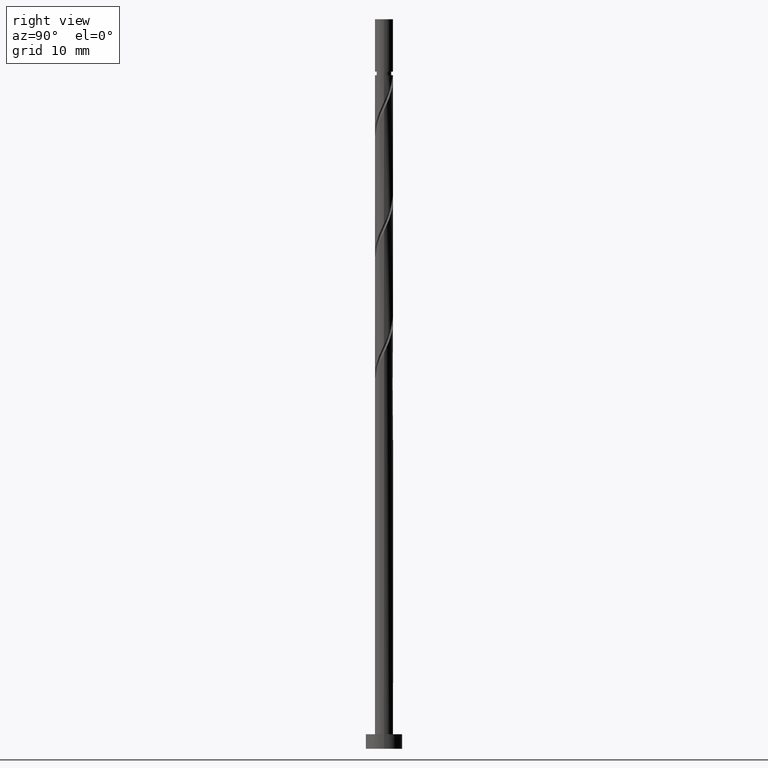
[diagram: clean part render]
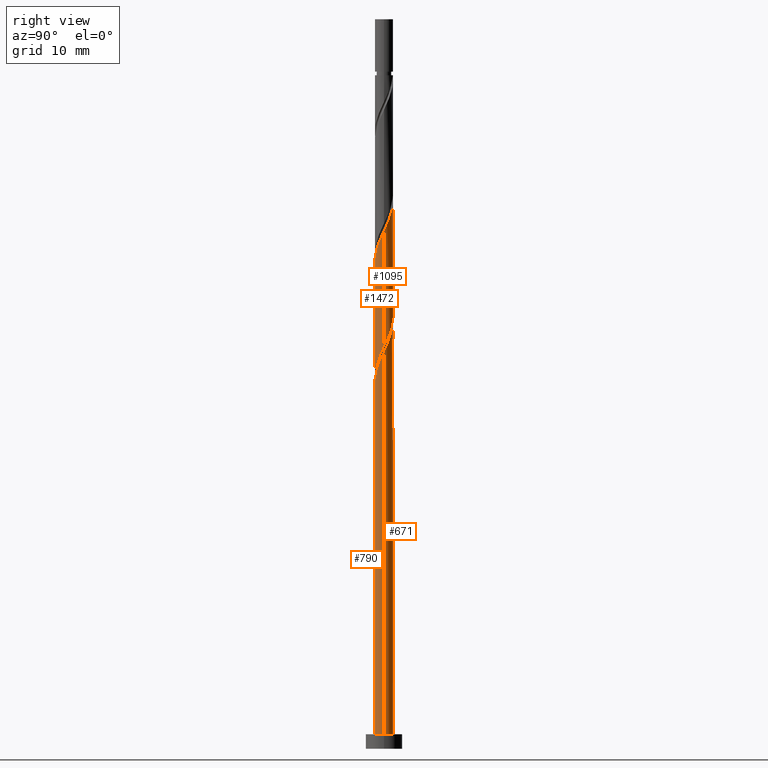
[diagram: same view with one multi-face feature highlighted, each face labeled with its STEP entity id]
A machine part, right view. The highlighted faces form ONE feature: a constant-radius fillet chain: 4 tangent blend faces with common blend radius 1.25 mm. The faces share edges in the B-rep.
Their STEP definitions:
[1] entity #1095 (Cylinder):
#2 = EDGE_CURVE ( 'NONE', #680, #813, #325, .T. ) ;
#3 = CARTESIAN_POINT ( 'NONE',  ( -1.185254549274266767, 0.3970789007548250482, 78.42208152126205789 ) ) ;
#50 = ORIENTED_EDGE ( 'NONE', *, *, #355, .T. ) ;
#63 = DIRECTION ( 'NONE',  ( -0.000000000000000000, -0.000000000000000000, -1.000000000000000000 ) ) ;
#101 = CARTESIAN_POINT ( 'NONE',  ( 1.082492517692347223, 0.6627895258576387283, 72.40356300274353885 ) ) ;
#107 = CARTESIAN_POINT ( 'NONE',  ( 0.9365076899976113589, 0.8279210992451773166, 72.86652596570650076 ) ) ;
#113 = CARTESIAN_POINT ( 'NONE',  ( -1.243897599560038314, 0.2525841805325140244, 63.14430374348425801 ) ) ;
#118 = CARTESIAN_POINT ( 'NONE',  ( 0.9779659711581908388, 0.7785130437292726580, 57.12578522496573896 ) ) ;
#124 = CARTESIAN_POINT ( 'NONE',  ( 0.4647474106445247388, 1.181139217343034176, 58.51467411385463180 ) ) ;
#126 = CARTESIAN_POINT ( 'NONE',  ( -1.250000000000001776, -5.751502120554076071E-16, 79.28011552182887556 ) ) ;
#191 = VERTEX_POINT ( 'NONE', #1277 ) ;
#210 = CARTESIAN_POINT ( 'NONE',  ( -0.9779659711581923931, 0.7785130437292746564, 77.49615559533613407 ) ) ;
#216 = CARTESIAN_POINT ( 'NONE',  ( -0.4647474106445250719, 1.181139217343036174, 76.10726670644721992 ) ) ;
#218 = CARTESIAN_POINT ( 'NONE',  ( 1.250000000000001776, -1.027053950098942163E-15, 70.94678218849549012 ) ) ;
#274 = ORIENTED_EDGE ( 'NONE', *, *, #1337, .F. ) ;
#325 = LINE ( 'NONE', #793, #413 ) ;
#332 = CARTESIAN_POINT ( 'NONE',  ( 0.03274630790878532011, 1.268860782656966668, 59.44060003978056272 ) ) ;
#339 = CARTESIAN_POINT ( 'NONE',  ( 0.6527202636798884461, 1.066047024001125720, 58.05171115089165568 ) ) ;
#355 = EDGE_CURVE ( 'NONE', #868, #191, #1092, .T. ) ;
#382 = DIRECTION ( 'NONE',  ( -0.000000000000000000, -0.000000000000000000, -1.000000000000000000 ) ) ;
#397 = CARTESIAN_POINT ( 'NONE',  ( 0.000000000000000000, 0.000000000000000000, 100.0000000000000000 ) ) ;
#413 = VECTOR ( 'NONE', #1023, 1000.000000000000000 ) ;
#439 = CARTESIAN_POINT ( 'NONE',  ( -1.250000000000000222, 2.774913036085524086E-15, 63.67515863180634028 ) ) ;
#458 = CARTESIAN_POINT ( 'NONE',  ( -1.082492517692345224, 0.6627895258576387283, 62.21837781755835550 ) ) ;
#464 = CARTESIAN_POINT ( 'NONE',  ( 1.250000000000000444, 1.923391942912577386E-16, 55.34182529847303300 ) ) ;
#508 = ORIENTED_EDGE ( 'NONE', *, *, #2, .F. ) ;
#534 = CYLINDRICAL_SURFACE ( 'NONE', #648, 1.250000000000000000 ) ;
#564 = CARTESIAN_POINT ( 'NONE',  ( -0.2487468592766548803, 1.225000000000002309, 75.64430374348430064 ) ) ;
#569 = CARTESIAN_POINT ( 'NONE',  ( -1.250000000000001998, -5.751502120554076071E-16, 79.28011552182887556 ) ) ;
#584 = CARTESIAN_POINT ( 'NONE',  ( 1.115238825601130968, 0.6060712567993277178, 56.66282226200277705 ) ) ;
#590 = CARTESIAN_POINT ( 'NONE',  ( -0.4032044828447868823, 1.203539011191732566, 60.36652596570649365 ) ) ;
#622 = CARTESIAN_POINT ( 'NONE',  ( 1.250000000000000000, 1.530808498934191571E-16, 100.0000000000000000 ) ) ;
#648 = AXIS2_PLACEMENT_3D ( 'NONE', #397, #63, #1244 ) ;
#678 = CARTESIAN_POINT ( 'NONE',  ( -1.250000000000003553, 0.2038179647755666291, 78.85019600946324658 ) ) ;
#680 = VERTEX_POINT ( 'NONE', #126 ) ;
#701 = CARTESIAN_POINT ( 'NONE',  ( -0.8406931167152518203, 0.9509548306592201516, 77.03319263237314374 ) ) ;
#791 = CARTESIAN_POINT ( 'NONE',  ( -1.250000000000000000, 0.01612709291502599507, 63.64114125787398279 ) ) ;
#793 = CARTESIAN_POINT ( 'NONE',  ( -1.250000000000000000, 0.000000000000000000, 100.0000000000000000 ) ) ;
#798 = CARTESIAN_POINT ( 'NONE',  ( 0.4032044828447884366, 1.203539011191733898, 74.25541485459534385 ) ) ;
#803 = CARTESIAN_POINT ( 'NONE',  ( 0.5968636725738323268, 1.098295841912225068, 73.79245189163239615 ) ) ;
#810 = CARTESIAN_POINT ( 'NONE',  ( 1.185254549274264768, 0.3970789007548241600, 56.19985929903981514 ) ) ;
#813 = VERTEX_POINT ( 'NONE', #819 ) ;
#819 = CARTESIAN_POINT ( 'NONE',  ( -1.250000000000000000, 2.774913036085523691E-15, 63.67515863180634028 ) ) ;
#827 = EDGE_LOOP ( 'NONE', ( #274, #50, #1059, #508 ) ) ;
#868 = VERTEX_POINT ( 'NONE', #218 ) ;
#903 = CARTESIAN_POINT ( 'NONE',  ( -1.163195058626191214, 0.4576868531950761820, 62.68134078052128899 ) ) ;
#909 = CARTESIAN_POINT ( 'NONE',  ( 1.250000000000000000, 0.2038179647755701540, 55.77174481083864777 ) ) ;
#917 = CARTESIAN_POINT ( 'NONE',  ( 0.7905228623028762724, 0.9930526726327152387, 73.32948892866943424 ) ) ;
#922 = CARTESIAN_POINT ( 'NONE',  ( -0.9365076899976096936, 0.8279210992451759843, 61.75541485459537228 ) ) ;
#1022 = CARTESIAN_POINT ( 'NONE',  ( 1.243897599560039868, 0.2525841805325139688, 71.47763707681755818 ) ) ;
#1023 = DIRECTION ( 'NONE',  ( -0.000000000000000000, -0.000000000000000000, -1.000000000000000000 ) ) ;
#1033 = CARTESIAN_POINT ( 'NONE',  ( 0.2487468592766551856, 1.224999999999999867, 58.97763707681758660 ) ) ;
#1044 =( BOUNDED_CURVE ( )  B_SPLINE_CURVE ( 2, ( #1249, #1132, #1386, #1022, #1374, #101, #107, #917, #803, #798, #1477, #1256, #564, #216, #1263, #701, #210, #1367, #3, #678, #569 ),
 .UNSPECIFIED., .F., .T. ) 
 B_SPLINE_CURVE_WITH_KNOTS ( ( 3, 2, 2, 2, 2, 2, 2, 2, 2, 2, 3 ),
 ( 0.4295248053855287296, 0.4305555555555555802, 0.4444444444444444198, 0.4583333333333333703, 0.4722222222222222099, 0.4861111111111111605, 0.5000000000000000000, 0.5138888888888888395, 0.5277777777777777901, 0.5416666666666667407, 0.5545248053855293957 ),
 .UNSPECIFIED. ) 
 CURVE ( )  GEOMETRIC_REPRESENTATION_ITEM ( )  RATIONAL_B_SPLINE_CURVE ( ( 0.9071930855141252525, 0.9080659294509730861, 0.9090909090909135015, 0.8952797754656481866, 0.9090909090909135015, 0.8952797754656481866, 0.9090909090909135015, 0.8952797754656481866, 0.9090909090909135015, 0.8952797754656481866, 0.9090909090909135015, 0.8952797754656481866, 0.9090909090909135015, 0.8952797754656481866, 0.9090909090909135015, 0.8952797754656481866, 0.9090909090909135015, 0.8952797754656481866, 0.9090909090909135015, 0.8963047551055879358, 0.9071930855141262517 ) ) 
 REPRESENTATION_ITEM ( '' )  );
#1059 = ORIENTED_EDGE ( 'NONE', *, *, #1274, .F. ) ;
#1092 = LINE ( 'NONE', #622, #1172 ) ;
#1095 = ADVANCED_FACE ( 'NONE', ( #1329 ), #534, .T. ) ;
#1132 = CARTESIAN_POINT ( 'NONE',  ( 1.250000000000001776, 0.01612709291502053416, 70.98079956242783339 ) ) ;
#1151 = CARTESIAN_POINT ( 'NONE',  ( -0.7905228623028748292, 0.9930526726327140175, 61.29245189163241747 ) ) ;
#1172 = VECTOR ( 'NONE', #382, 1000.000000000000000 ) ;
#1244 = DIRECTION ( 'NONE',  ( -1.000000000000000000, 0.000000000000000000, 0.000000000000000000 ) ) ;
#1249 = CARTESIAN_POINT ( 'NONE',  ( 1.250000000000001998, -1.027053950098942163E-15, 70.94678218849549012 ) ) ;
#1253 =( BOUNDED_CURVE ( )  B_SPLINE_CURVE ( 2, ( #439, #791, #1269, #113, #903, #458, #922, #1151, #1380, #590, #1276, #332, #1033, #124, #339, #1469, #118, #584, #810, #909, #464 ),
 .UNSPECIFIED., .F., .T. ) 
 B_SPLINE_CURVE_WITH_KNOTS ( ( 3, 2, 2, 2, 2, 2, 2, 2, 2, 2, 3 ),
 ( 0.6795248053855290626, 0.6805555555555555802, 0.6944444444444444198, 0.7083333333333333703, 0.7222222222222222099, 0.7361111111111111605, 0.7500000000000000000, 0.7638888888888888395, 0.7777777777777777901, 0.7916666666666666297, 0.8045248053855290626 ),
 .UNSPECIFIED. ) 
 CURVE ( )  GEOMETRIC_REPRESENTATION_ITEM ( )  RATIONAL_B_SPLINE_CURVE ( ( 0.9071930855141197014, 0.9080659294509674240, 0.9090909090909075063, 0.8952797754656419693, 0.9090909090909075063, 0.8952797754656419693, 0.9090909090909075063, 0.8952797754656419693, 0.9090909090909075063, 0.8952797754656419693, 0.9090909090909075063, 0.8952797754656419693, 0.9090909090909075063, 0.8952797754656419693, 0.9090909090909075063, 0.8952797754656419693, 0.9090909090909075063, 0.8952797754656419693, 0.9090909090909075063, 0.8963047551055820517, 0.9071930855141197014 ) ) 
 REPRESENTATION_ITEM ( '' )  );
#1256 = CARTESIAN_POINT ( 'NONE',  ( -0.03274630790878510500, 1.268860782656968000, 75.18134078052126767 ) ) ;
#1263 = CARTESIAN_POINT ( 'NONE',  ( -0.6527202636798885571, 1.066047024001128607, 76.57022966941018183 ) ) ;
#1269 = CARTESIAN_POINT ( 'NONE',  ( -1.249583936253718219, 0.03224881791109680124, 63.60726670644721281 ) ) ;
#1274 = EDGE_CURVE ( 'NONE', #813, #191, #1253, .T. ) ;
#1276 = CARTESIAN_POINT ( 'NONE',  ( -0.1852290874680007915, 1.236199896924349062, 59.90356300274352463 ) ) ;
#1277 = CARTESIAN_POINT ( 'NONE',  ( 1.250000000000000444, 1.923391942912577386E-16, 55.34182529847303300 ) ) ;
#1329 = FACE_OUTER_BOUND ( 'NONE', #827, .T. ) ;
#1337 = EDGE_CURVE ( 'NONE', #868, #680, #1044, .T. ) ;
#1367 = CARTESIAN_POINT ( 'NONE',  ( -1.115238825601132300, 0.6060712567993288280, 77.95911855829909598 ) ) ;
#1374 = CARTESIAN_POINT ( 'NONE',  ( 1.163195058626193878, 0.4576868531950764596, 71.94060003978057694 ) ) ;
#1380 = CARTESIAN_POINT ( 'NONE',  ( -0.5968636725738306614, 1.098295841912223070, 60.82948892866944846 ) ) ;
#1386 = CARTESIAN_POINT ( 'NONE',  ( 1.249583936253720218, 0.03224881791109665552, 71.01467411385462469 ) ) ;
#1469 = CARTESIAN_POINT ( 'NONE',  ( 0.8406931167152514872, 0.9509548306592183753, 57.58874818792870798 ) ) ;
#1477 = CARTESIAN_POINT ( 'NONE',  ( 0.1852290874680022348, 1.236199896924351060, 74.71837781755837682 ) ) ;
[2] entity #1472 (Cylinder):
#19 = EDGE_CURVE ( 'NONE', #191, #127, #1474, .T. ) ;
#25 = CARTESIAN_POINT ( 'NONE',  ( 0.8406931167152515982, -0.9509548306592204847, 68.69985929903982935 ) ) ;
#97 = CARTESIAN_POINT ( 'NONE',  ( 1.082492517692345002, -0.6627895258576392834, 53.88504448422500559 ) ) ;
#108 = CARTESIAN_POINT ( 'NONE',  ( -1.250000000000000222, -7.021314277040088684E-16, 47.00849196513969730 ) ) ;
#114 = CARTESIAN_POINT ( 'NONE',  ( -0.4647474106445250719, -1.181139217343034176, 50.18134078052131741 ) ) ;
#121 = ORIENTED_EDGE ( 'NONE', *, *, #355, .F. ) ;
#127 = VERTEX_POINT ( 'NONE', #108 ) ;
#133 = VECTOR ( 'NONE', #1395, 1000.000000000000000 ) ;
#135 = CARTESIAN_POINT ( 'NONE',  ( -1.250000000000002220, -2.451857884508928913E-15, 62.61344885516218994 ) ) ;
#144 = CARTESIAN_POINT ( 'NONE',  ( -1.250000000000002220, -2.451857884508928913E-15, 62.61344885516218994 ) ) ;
#145 = ORIENTED_EDGE ( 'NONE', *, *, #1035, .F. ) ;
#191 = VERTEX_POINT ( 'NONE', #1277 ) ;
#198 = CARTESIAN_POINT ( 'NONE',  ( -1.250000000000000222, -7.021314277040088684E-16, 47.00849196513969730 ) ) ;
#217 = ORIENTED_EDGE ( 'NONE', *, *, #317, .T. ) ;
#218 = CARTESIAN_POINT ( 'NONE',  ( 1.250000000000001776, -1.027053950098942163E-15, 70.94678218849549012 ) ) ;
#225 =( BOUNDED_CURVE ( )  B_SPLINE_CURVE ( 2, ( #135, #963, #859, #1417, #257, #826, #615, #716, #507, #969, #1081, #1176, #600, #1058, #1290, #25, #481, #1066, #1298, #851, #1424 ),
 .UNSPECIFIED., .F., .T. ) 
 B_SPLINE_CURVE_WITH_KNOTS ( ( 3, 2, 2, 2, 2, 2, 2, 2, 2, 2, 3 ),
 ( 0.3045248053855292847, 0.3055555555555555802, 0.3194444444444444198, 0.3333333333333333703, 0.3472222222222222099, 0.3611111111111111605, 0.3750000000000000000, 0.3888888888888888395, 0.4027777777777777901, 0.4166666666666666297, 0.4295248053855287296 ),
 .UNSPECIFIED. ) 
 CURVE ( )  GEOMETRIC_REPRESENTATION_ITEM ( )  RATIONAL_B_SPLINE_CURVE ( ( 0.9071930855141261407, 0.9080659294509736412, 0.9090909090909135015, 0.8952797754656481866, 0.9090909090909135015, 0.8952797754656481866, 0.9090909090909135015, 0.8952797754656481866, 0.9090909090909135015, 0.8952797754656481866, 0.9090909090909135015, 0.8952797754656481866, 0.9090909090909135015, 0.8952797754656481866, 0.9090909090909135015, 0.8952797754656481866, 0.9090909090909135015, 0.8952797754656481866, 0.9090909090909135015, 0.8963047551055886020, 0.9071930855141252525 ) ) 
 REPRESENTATION_ITEM ( '' )  );
#257 = CARTESIAN_POINT ( 'NONE',  ( -1.163195058626193656, -0.4576868531950767371, 63.60726670644724123 ) ) ;
#296 = ORIENTED_EDGE ( 'NONE', *, *, #19, .F. ) ;
#317 = EDGE_CURVE ( 'NONE', #884, #127, #721, .T. ) ;
#321 = CARTESIAN_POINT ( 'NONE',  ( 1.163195058626191214, -0.4576868531950760710, 54.34800744718796750 ) ) ;
#340 = CARTESIAN_POINT ( 'NONE',  ( -1.185254549274264768, -0.3970789007548236604, 47.86652596570648655 ) ) ;
#355 = EDGE_CURVE ( 'NONE', #868, #191, #1092, .T. ) ;
#382 = DIRECTION ( 'NONE',  ( -0.000000000000000000, -0.000000000000000000, -1.000000000000000000 ) ) ;
#440 = CARTESIAN_POINT ( 'NONE',  ( 0.7905228623028744961, -0.9930526726327140175, 52.95911855829908887 ) ) ;
#481 = CARTESIAN_POINT ( 'NONE',  ( 0.9779659711581923931, -0.7785130437292746564, 69.16282226200279126 ) ) ;
#507 = CARTESIAN_POINT ( 'NONE',  ( -0.5968636725738321047, -1.098295841912225068, 65.45911855829909598 ) ) ;
#600 = CARTESIAN_POINT ( 'NONE',  ( 0.2487468592766550191, -1.225000000000002309, 67.31097041015097204 ) ) ;
#615 = CARTESIAN_POINT ( 'NONE',  ( -0.9365076899976116920, -0.8279210992451770945, 64.53319263237317216 ) ) ;
#622 = CARTESIAN_POINT ( 'NONE',  ( 1.250000000000000000, 1.530808498934191571E-16, 100.0000000000000000 ) ) ;
#716 = CARTESIAN_POINT ( 'NONE',  ( -0.7905228623028761614, -0.9930526726327152387, 64.99615559533611986 ) ) ;
#721 = LINE ( 'NONE', #1160, #133 ) ;
#726 = DIRECTION ( 'NONE',  ( -1.000000000000000000, 0.000000000000000000, 0.000000000000000000 ) ) ;
#771 = EDGE_LOOP ( 'NONE', ( #121, #145, #217, #296 ) ) ;
#778 = CARTESIAN_POINT ( 'NONE',  ( -1.249999999999998002, -0.2038179647755760382, 47.43841147750531917 ) ) ;
#786 = CARTESIAN_POINT ( 'NONE',  ( -0.6527202636798878910, -1.066047024001125942, 49.71837781755834129 ) ) ;
#826 = CARTESIAN_POINT ( 'NONE',  ( -1.082492517692347000, -0.6627895258576391724, 64.07022966941018183 ) ) ;
#851 = CARTESIAN_POINT ( 'NONE',  ( 1.250000000000000000, -0.2038179647755773427, 70.51686267612988956 ) ) ;
#854 = FACE_OUTER_BOUND ( 'NONE', #771, .T. ) ;
#859 = CARTESIAN_POINT ( 'NONE',  ( -1.249583936253720218, -0.03224881791109653756, 62.68134078052131741 ) ) ;
#868 = VERTEX_POINT ( 'NONE', #218 ) ;
#884 = VERTEX_POINT ( 'NONE', #144 ) ;
#904 = CARTESIAN_POINT ( 'NONE',  ( 0.4032044828447866602, -1.203539011191733010, 52.03319263237315084 ) ) ;
#918 = CARTESIAN_POINT ( 'NONE',  ( 1.250000000000000222, -0.01612709291502648079, 55.30780792454066841 ) ) ;
#963 = CARTESIAN_POINT ( 'NONE',  ( -1.250000000000001776, -0.01612709291502917655, 62.64746622909454743 ) ) ;
#969 = CARTESIAN_POINT ( 'NONE',  ( -0.4032044828447876039, -1.203539011191734343, 65.92208152126204368 ) ) ;
#1018 = CARTESIAN_POINT ( 'NONE',  ( 1.243897599560038314, -0.2525841805325141909, 54.81097041015094362 ) ) ;
#1035 = EDGE_CURVE ( 'NONE', #884, #868, #225, .T. ) ;
#1058 = CARTESIAN_POINT ( 'NONE',  ( 0.4647474106445247388, -1.181139217343036174, 67.77393337311389132 ) ) ;
#1066 = CARTESIAN_POINT ( 'NONE',  ( 1.115238825601131856, -0.6060712567993289390, 69.62578522496575317 ) ) ;
#1081 = CARTESIAN_POINT ( 'NONE',  ( -0.1852290874680015964, -1.236199896924351282, 66.38504448422500559 ) ) ;
#1092 = LINE ( 'NONE', #622, #1172 ) ;
#1102 = AXIS2_PLACEMENT_3D ( 'NONE', #1419, #1191, #726 ) ;
#1128 = CARTESIAN_POINT ( 'NONE',  ( -0.9779659711581906167, -0.7785130437292729910, 48.79245189163241037 ) ) ;
#1133 = CARTESIAN_POINT ( 'NONE',  ( 0.5968636725738306614, -1.098295841912223070, 52.49615559533610565 ) ) ;
#1138 = CARTESIAN_POINT ( 'NONE',  ( -0.8406931167152508211, -0.9509548306592188194, 49.25541485459537938 ) ) ;
#1144 = CARTESIAN_POINT ( 'NONE',  ( 0.1852290874680007082, -1.236199896924349062, 51.57022966941017472 ) ) ;
#1160 = CARTESIAN_POINT ( 'NONE',  ( -1.250000000000000000, 0.000000000000000000, 100.0000000000000000 ) ) ;
#1172 = VECTOR ( 'NONE', #382, 1000.000000000000000 ) ;
#1176 = CARTESIAN_POINT ( 'NONE',  ( 0.03274630790878472336, -1.268860782656968000, 66.84800744718798171 ) ) ;
#1191 = DIRECTION ( 'NONE',  ( -0.000000000000000000, -0.000000000000000000, -1.000000000000000000 ) ) ;
#1251 = CARTESIAN_POINT ( 'NONE',  ( 1.250000000000000444, 1.923391942912577386E-16, 55.34182529847303300 ) ) ;
#1257 = CARTESIAN_POINT ( 'NONE',  ( -1.115238825601130745, -0.6060712567993279398, 48.32948892866945556 ) ) ;
#1265 = CARTESIAN_POINT ( 'NONE',  ( 1.249583936253718663, -0.03224881791109725920, 55.27393337311389843 ) ) ;
#1277 = CARTESIAN_POINT ( 'NONE',  ( 1.250000000000000444, 1.923391942912577386E-16, 55.34182529847303300 ) ) ;
#1290 = CARTESIAN_POINT ( 'NONE',  ( 0.6527202636798884461, -1.066047024001128607, 68.23689633607686744 ) ) ;
#1298 = CARTESIAN_POINT ( 'NONE',  ( 1.185254549274266767, -0.3970789007548254923, 70.08874818792871508 ) ) ;
#1308 = CYLINDRICAL_SURFACE ( 'NONE', #1102, 1.250000000000000000 ) ;
#1355 = CARTESIAN_POINT ( 'NONE',  ( 0.9365076899976095826, -0.8279210992451763174, 53.42208152126202947 ) ) ;
#1369 = CARTESIAN_POINT ( 'NONE',  ( -0.2487468592766550746, -1.224999999999999867, 50.64430374348425090 ) ) ;
#1395 = DIRECTION ( 'NONE',  ( -0.000000000000000000, -0.000000000000000000, -1.000000000000000000 ) ) ;
#1417 = CARTESIAN_POINT ( 'NONE',  ( -1.243897599560039868, -0.2525841805325140799, 63.14430374348425801 ) ) ;
#1419 = CARTESIAN_POINT ( 'NONE',  ( 0.000000000000000000, 0.000000000000000000, 100.0000000000000000 ) ) ;
#1424 = CARTESIAN_POINT ( 'NONE',  ( 1.250000000000001998, -1.027053950098942163E-15, 70.94678218849549012 ) ) ;
#1472 = ADVANCED_FACE ( 'NONE', ( #854 ), #1308, .T. ) ;
#1474 =( BOUNDED_CURVE ( )  B_SPLINE_CURVE ( 2, ( #1251, #918, #1265, #1018, #321, #97, #1355, #440, #1133, #904, #1144, #1478, #1369, #114, #786, #1138, #1128, #1257, #340, #778, #198 ),
 .UNSPECIFIED., .F., .T. ) 
 B_SPLINE_CURVE_WITH_KNOTS ( ( 3, 2, 2, 2, 2, 2, 2, 2, 2, 2, 3 ),
 ( 0.8045248053855290626, 0.8055555555555555802, 0.8194444444444444198, 0.8333333333333333703, 0.8472222222222222099, 0.8611111111111111605, 0.8750000000000000000, 0.8888888888888888395, 0.9027777777777777901, 0.9166666666666666297, 0.9295248053855287296 ),
 .UNSPECIFIED. ) 
 CURVE ( )  GEOMETRIC_REPRESENTATION_ITEM ( )  RATIONAL_B_SPLINE_CURVE ( ( 0.9071930855141197014, 0.9080659294509674240, 0.9090909090909075063, 0.8952797754656419693, 0.9090909090909075063, 0.8952797754656419693, 0.9090909090909075063, 0.8952797754656419693, 0.9090909090909075063, 0.8952797754656419693, 0.9090909090909075063, 0.8952797754656419693, 0.9090909090909075063, 0.8952797754656419693, 0.9090909090909075063, 0.8952797754656419693, 0.9090909090909075063, 0.8952797754656419693, 0.9090909090909075063, 0.8963047551055823847, 0.9071930855141191463 ) ) 
 REPRESENTATION_ITEM ( '' )  );
#1478 = CARTESIAN_POINT ( 'NONE',  ( -0.03274630790878577807, -1.268860782656966890, 51.10726670644724123 ) ) ;
[3] entity #671 (Cylinder):
#31 = CARTESIAN_POINT ( 'NONE',  ( 1.243897599560039868, 0.2525841805325139688, 54.81097041015091520 ) ) ;
#40 = CARTESIAN_POINT ( 'NONE',  ( -1.250000000000000000, 0.01612709291502077702, 46.97447459120733271 ) ) ;
#47 = EDGE_CURVE ( 'NONE', #353, #453, #1034, .T. ) ;
#48 = CARTESIAN_POINT ( 'NONE',  ( -0.4647474106445250719, 1.181139217343036174, 59.44060003978056272 ) ) ;
#49 = CARTESIAN_POINT ( 'NONE',  ( -1.250000000000000222, -7.021314277040088684E-16, 47.00849196513969730 ) ) ;
#58 = CARTESIAN_POINT ( 'NONE',  ( -0.6527202636798885571, 1.066047024001128607, 43.23689633607686744 ) ) ;
#75 = CYLINDRICAL_SURFACE ( 'NONE', #137, 1.250000000000000000 ) ;
#108 = CARTESIAN_POINT ( 'NONE',  ( -1.250000000000000222, -7.021314277040088684E-16, 47.00849196513969730 ) ) ;
#115 = CARTESIAN_POINT ( 'NONE',  ( 1.250000000000000000, 1.530808498934191571E-16, 100.0000000000000000 ) ) ;
#127 = VERTEX_POINT ( 'NONE', #108 ) ;
#133 = VECTOR ( 'NONE', #1395, 1000.000000000000000 ) ;
#137 = AXIS2_PLACEMENT_3D ( 'NONE', #996, #1350, #1212 ) ;
#144 = CARTESIAN_POINT ( 'NONE',  ( -1.250000000000002220, -2.451857884508928913E-15, 62.61344885516218994 ) ) ;
#165 = CARTESIAN_POINT ( 'NONE',  ( -0.8406931167152518203, 0.9509548306592201516, 60.36652596570647944 ) ) ;
#168 = FACE_OUTER_BOUND ( 'NONE', #616, .T. ) ;
#172 = CARTESIAN_POINT ( 'NONE',  ( 0.7905228623028762724, 0.9930526726327152387, 56.66282226200279126 ) ) ;
#181 = DIRECTION ( 'NONE',  ( 0.000000000000000000, 0.000000000000000000, 1.000000000000000000 ) ) ;
#248 = CARTESIAN_POINT ( 'NONE',  ( -0.5968636725738306614, 1.098295841912223070, 44.16282226200278416 ) ) ;
#249 = ORIENTED_EDGE ( 'NONE', *, *, #1158, .T. ) ;
#263 = CARTESIAN_POINT ( 'NONE',  ( 1.082492517692347223, 0.6627895258576387283, 55.73689633607685323 ) ) ;
#272 = CARTESIAN_POINT ( 'NONE',  ( -1.250000000000000000, 0.000000000000000000, 2.000000000000000000 ) ) ;
#288 = DIRECTION ( 'NONE',  ( 1.000000000000000000, 0.000000000000000000, 0.000000000000000000 ) ) ;
#294 = DIRECTION ( 'NONE',  ( -1.000000000000000000, 0.000000000000000000, 0.000000000000000000 ) ) ;
#302 = CARTESIAN_POINT ( 'NONE',  ( -1.185254549274266767, 0.3970789007548250482, 61.75541485459537938 ) ) ;
#307 = CARTESIAN_POINT ( 'NONE',  ( -0.4647474106445250719, 1.181139217343036174, 42.77393337311389132 ) ) ;
#317 = EDGE_CURVE ( 'NONE', #884, #127, #721, .T. ) ;
#333 = EDGE_CURVE ( 'NONE', #1082, #884, #757, .T. ) ;
#349 = CIRCLE ( 'NONE', #1390, 1.250000000000000000 ) ;
#353 = VERTEX_POINT ( 'NONE', #768 ) ;
#368 = CARTESIAN_POINT ( 'NONE',  ( 0.03274630790878532011, 1.268860782656966668, 42.77393337311389843 ) ) ;
#375 = EDGE_CURVE ( 'NONE', #1211, #843, #525, .T. ) ;
#383 = CARTESIAN_POINT ( 'NONE',  ( -0.4032044828447868823, 1.203539011191732566, 43.69985929903982935 ) ) ;
#392 = CARTESIAN_POINT ( 'NONE',  ( -1.250000000000002442, -2.451857884508928913E-15, 45.94678218849551854 ) ) ;
#396 = CARTESIAN_POINT ( 'NONE',  ( -1.115238825601132300, 0.6060712567993288280, 61.29245189163240326 ) ) ;
#401 = CARTESIAN_POINT ( 'NONE',  ( -1.250000000000001332, 0.2038179647755728463, 45.51686267612986825 ) ) ;
#453 = VERTEX_POINT ( 'NONE', #272 ) ;
#486 = VECTOR ( 'NONE', #570, 1000.000000000000000 ) ;
#515 = CARTESIAN_POINT ( 'NONE',  ( -0.9365076899976096936, 0.8279210992451759843, 45.08874818792870798 ) ) ;
#518 = CARTESIAN_POINT ( 'NONE',  ( -0.9779659711581923931, 0.7785130437292746564, 44.16282226200279126 ) ) ;
#525 = CIRCLE ( 'NONE', #1143, 1.250000000000000000 ) ;
#550 = CARTESIAN_POINT ( 'NONE',  ( 1.250000000000001776, -1.027053950098942163E-15, 54.28011552182883293 ) ) ;
#558 = CARTESIAN_POINT ( 'NONE',  ( 0.000000000000000000, 0.000000000000000000, 2.000000000000000000 ) ) ;
#562 = EDGE_CURVE ( 'NONE', #1211, #353, #1220, .T. ) ;
#570 = DIRECTION ( 'NONE',  ( -0.000000000000000000, -0.000000000000000000, -1.000000000000000000 ) ) ;
#580 = ORIENTED_EDGE ( 'NONE', *, *, #942, .F. ) ;
#592 = DIRECTION ( 'NONE',  ( -0.000000000000000000, -0.000000000000000000, -1.000000000000000000 ) ) ;
#606 = CARTESIAN_POINT ( 'NONE',  ( 1.250000000000001776, 0.01612709291502618589, 54.31413289576120462 ) ) ;
#607 = CARTESIAN_POINT ( 'NONE',  ( -0.7905228623028748292, 0.9930526726327140175, 44.62578522496574607 ) ) ;
#616 = EDGE_LOOP ( 'NONE', ( #1485, #682, #249, #1187, #1106, #1285, #580, #738 ) ) ;
#633 = CARTESIAN_POINT ( 'NONE',  ( -1.185254549274266767, 0.3970789007548250482, 45.08874818792872219 ) ) ;
#638 = CARTESIAN_POINT ( 'NONE',  ( 0.1852290874680022348, 1.236199896924351060, 58.05171115089167699 ) ) ;
#655 = CARTESIAN_POINT ( 'NONE',  ( 0.9365076899976113589, 0.8279210992451773166, 56.19985929903982935 ) ) ;
#663 = CARTESIAN_POINT ( 'NONE',  ( -0.2487468592766548803, 1.225000000000002309, 42.31097041015092941 ) ) ;
#664 = CARTESIAN_POINT ( 'NONE',  ( -1.250000000000000000, 0.000000000000000000, 100.0000000000000000 ) ) ;
#666 = CARTESIAN_POINT ( 'NONE',  ( -1.115238825601132300, 0.6060712567993288280, 44.62578522496573896 ) ) ;
#671 = ADVANCED_FACE ( 'NONE', ( #168 ), #75, .T. ) ;
#682 = ORIENTED_EDGE ( 'NONE', *, *, #698, .T. ) ;
#686 = VERTEX_POINT ( 'NONE', #1382 ) ;
#698 = EDGE_CURVE ( 'NONE', #1082, #686, #1145, .T. ) ;
#704 = CARTESIAN_POINT ( 'NONE',  ( 0.2487468592766552966, 1.225000000000000089, 42.31097041015092941 ) ) ;
#721 = LINE ( 'NONE', #1160, #133 ) ;
#722 = CARTESIAN_POINT ( 'NONE',  ( -0.1852290874680007915, 1.236199896924349062, 43.23689633607685323 ) ) ;
#738 = ORIENTED_EDGE ( 'NONE', *, *, #317, .F. ) ;
#744 = CARTESIAN_POINT ( 'NONE',  ( -1.163195058626191214, 0.4576868531950761820, 46.01467411385461759 ) ) ;
#757 =( BOUNDED_CURVE ( )  B_SPLINE_CURVE ( 2, ( #1175, #606, #1065, #31, #1297, #263, #655, #172, #858, #968, #638, #1430, #991, #48, #1112, #165, #1336, #396, #302, #1305, #1445 ),
 .UNSPECIFIED., .F., .T. ) 
 B_SPLINE_CURVE_WITH_KNOTS ( ( 3, 2, 2, 2, 2, 2, 2, 2, 2, 2, 3 ),
 ( 0.1795248053855290904, 0.1805555555555555802, 0.1944444444444444198, 0.2083333333333333703, 0.2222222222222222099, 0.2361111111111111605, 0.2500000000000000000, 0.2638888888888888395, 0.2777777777777777901, 0.2916666666666666297, 0.3045248053855292847 ),
 .UNSPECIFIED. ) 
 CURVE ( )  GEOMETRIC_REPRESENTATION_ITEM ( )  RATIONAL_B_SPLINE_CURVE ( ( 0.9071930855141259187, 0.9080659294509735302, 0.9090909090909135015, 0.8952797754656481866, 0.9090909090909135015, 0.8952797754656481866, 0.9090909090909135015, 0.8952797754656481866, 0.9090909090909135015, 0.8952797754656481866, 0.9090909090909135015, 0.8952797754656481866, 0.9090909090909135015, 0.8952797754656481866, 0.9090909090909135015, 0.8952797754656481866, 0.9090909090909135015, 0.8952797754656481866, 0.9090909090909135015, 0.8963047551055880469, 0.9071930855141261407 ) ) 
 REPRESENTATION_ITEM ( '' )  );
#768 = CARTESIAN_POINT ( 'NONE',  ( -1.250000000000002220, -2.451857884508928913E-15, 45.94678218849551854 ) ) ;
#780 = CARTESIAN_POINT ( 'NONE',  ( -0.8406931167152518203, 0.9509548306592201516, 43.69985929903982225 ) ) ;
#842 = CARTESIAN_POINT ( 'NONE',  ( -1.082492517692345224, 0.6627895258576387283, 45.55171115089167699 ) ) ;
#843 = VERTEX_POINT ( 'NONE', #704 ) ;
#856 =( BOUNDED_CURVE ( )  B_SPLINE_CURVE ( 2, ( #49, #40, #1202, #1169, #744, #842, #515, #607, #248, #383, #722, #368, #976 ),
 .UNSPECIFIED., .F., .T. ) 
 B_SPLINE_CURVE_WITH_KNOTS ( ( 3, 2, 2, 2, 2, 2, 3 ),
 ( 0.9295248053855287296, 0.9305555555555555802, 0.9444444444444444198, 0.9583333333333333703, 0.9722222222222222099, 0.9861111111111111605, 1.000000000000000000 ),
 .UNSPECIFIED. ) 
 CURVE ( )  GEOMETRIC_REPRESENTATION_ITEM ( )  RATIONAL_B_SPLINE_CURVE ( ( 0.9071930855141191463, 0.9080659294509670909, 0.9090909090909075063, 0.8952797754656419693, 0.9090909090909075063, 0.8952797754656419693, 0.9090909090909075063, 0.8952797754656419693, 0.9090909090909075063, 0.8952797754656419693, 0.9090909090909075063, 0.8952797754656419693, 0.9090909090909075063 ) ) 
 REPRESENTATION_ITEM ( '' )  );
#858 = CARTESIAN_POINT ( 'NONE',  ( 0.5968636725738323268, 1.098295841912225068, 57.12578522496576028 ) ) ;
#884 = VERTEX_POINT ( 'NONE', #144 ) ;
#913 = VECTOR ( 'NONE', #592, 1000.000000000000000 ) ;
#942 = EDGE_CURVE ( 'NONE', #127, #843, #856, .T. ) ;
#968 = CARTESIAN_POINT ( 'NONE',  ( 0.4032044828447884366, 1.203539011191733898, 57.58874818792870087 ) ) ;
#976 = CARTESIAN_POINT ( 'NONE',  ( 0.2487468592766552966, 1.225000000000000089, 42.31097041015092941 ) ) ;
#991 = CARTESIAN_POINT ( 'NONE',  ( -0.2487468592766548803, 1.225000000000002309, 58.97763707681762213 ) ) ;
#996 = CARTESIAN_POINT ( 'NONE',  ( 0.000000000000000000, 0.000000000000000000, 100.0000000000000000 ) ) ;
#1034 = LINE ( 'NONE', #664, #486 ) ;
#1065 = CARTESIAN_POINT ( 'NONE',  ( 1.249583936253720218, 0.03224881791109665552, 54.34800744718796750 ) ) ;
#1082 = VERTEX_POINT ( 'NONE', #550 ) ;
#1106 = ORIENTED_EDGE ( 'NONE', *, *, #562, .F. ) ;
#1112 = CARTESIAN_POINT ( 'NONE',  ( -0.6527202636798885571, 1.066047024001128607, 59.90356300274353174 ) ) ;
#1143 = AXIS2_PLACEMENT_3D ( 'NONE', #1217, #1209, #294 ) ;
#1145 = LINE ( 'NONE', #115, #913 ) ;
#1158 = EDGE_CURVE ( 'NONE', #686, #453, #349, .T. ) ;
#1160 = CARTESIAN_POINT ( 'NONE',  ( -1.250000000000000000, 0.000000000000000000, 100.0000000000000000 ) ) ;
#1169 = CARTESIAN_POINT ( 'NONE',  ( -1.243897599560038314, 0.2525841805325140244, 46.47763707681760081 ) ) ;
#1175 = CARTESIAN_POINT ( 'NONE',  ( 1.250000000000001776, -1.027053950098942163E-15, 54.28011552182883293 ) ) ;
#1187 = ORIENTED_EDGE ( 'NONE', *, *, #47, .F. ) ;
#1202 = CARTESIAN_POINT ( 'NONE',  ( -1.249583936253718219, 0.03224881791109680124, 46.94060003978055562 ) ) ;
#1209 = DIRECTION ( 'NONE',  ( 0.000000000000000000, -0.000000000000000000, -1.000000000000000000 ) ) ;
#1211 = VERTEX_POINT ( 'NONE', #663 ) ;
#1212 = DIRECTION ( 'NONE',  ( -1.000000000000000000, 0.000000000000000000, 0.000000000000000000 ) ) ;
#1217 = CARTESIAN_POINT ( 'NONE',  ( 0.000000000000000000, 0.000000000000000000, 42.31097041015092941 ) ) ;
#1220 =( BOUNDED_CURVE ( )  B_SPLINE_CURVE ( 2, ( #1341, #307, #58, #780, #518, #666, #633, #401, #392 ),
 .UNSPECIFIED., .F., .T. ) 
 B_SPLINE_CURVE_WITH_KNOTS ( ( 3, 2, 2, 2, 3 ),
 ( 0.000000000000000000, 0.01388888888888883955, 0.02777777777777779011, 0.04166666666666662966, 0.05452480538552897937 ),
 .UNSPECIFIED. ) 
 CURVE ( )  GEOMETRIC_REPRESENTATION_ITEM ( )  RATIONAL_B_SPLINE_CURVE ( ( 0.9090909090909135015, 0.8952797754656481866, 0.9090909090909135015, 0.8952797754656481866, 0.9090909090909135015, 0.8952797754656481866, 0.9090909090909135015, 0.8963047551055883799, 0.9071930855141255856 ) ) 
 REPRESENTATION_ITEM ( '' )  );
#1285 = ORIENTED_EDGE ( 'NONE', *, *, #375, .T. ) ;
#1297 = CARTESIAN_POINT ( 'NONE',  ( 1.163195058626193878, 0.4576868531950764596, 55.27393337311391264 ) ) ;
#1305 = CARTESIAN_POINT ( 'NONE',  ( -1.250000000000003109, 0.2038179647755682389, 62.18352934279653965 ) ) ;
#1336 = CARTESIAN_POINT ( 'NONE',  ( -0.9779659711581923931, 0.7785130437292746564, 60.82948892866944846 ) ) ;
#1341 = CARTESIAN_POINT ( 'NONE',  ( -0.2487468592766548803, 1.225000000000002309, 42.31097041015092941 ) ) ;
#1350 = DIRECTION ( 'NONE',  ( -0.000000000000000000, -0.000000000000000000, -1.000000000000000000 ) ) ;
#1382 = CARTESIAN_POINT ( 'NONE',  ( 1.250000000000000000, 1.530808498934191571E-16, 2.000000000000000000 ) ) ;
#1390 = AXIS2_PLACEMENT_3D ( 'NONE', #558, #181, #288 ) ;
#1395 = DIRECTION ( 'NONE',  ( -0.000000000000000000, -0.000000000000000000, -1.000000000000000000 ) ) ;
#1430 = CARTESIAN_POINT ( 'NONE',  ( -0.03274630790878510500, 1.268860782656968000, 58.51467411385463890 ) ) ;
#1445 = CARTESIAN_POINT ( 'NONE',  ( -1.250000000000002220, -2.451857884508928913E-15, 62.61344885516218994 ) ) ;
#1485 = ORIENTED_EDGE ( 'NONE', *, *, #333, .F. ) ;
[4] entity #790 (Cylinder):
#24 = CARTESIAN_POINT ( 'NONE',  ( 0.4647474106445247388, -1.181139217343036174, 51.10726670644723413 ) ) ;
#39 = CARTESIAN_POINT ( 'NONE',  ( -0.9365076899976116920, -0.8279210992451770945, 47.86652596570650076 ) ) ;
#47 = EDGE_CURVE ( 'NONE', #353, #453, #1034, .T. ) ;
#115 = CARTESIAN_POINT ( 'NONE',  ( 1.250000000000000000, 1.530808498934191571E-16, 100.0000000000000000 ) ) ;
#119 = CARTESIAN_POINT ( 'NONE',  ( -1.243897599560039868, -0.2525841805325140799, 46.47763707681758660 ) ) ;
#120 = DIRECTION ( 'NONE',  ( -1.000000000000000000, 0.000000000000000000, 0.000000000000000000 ) ) ;
#143 = CARTESIAN_POINT ( 'NONE',  ( -0.4032044828447876039, -1.203539011191734343, 49.25541485459537938 ) ) ;
#151 = CARTESIAN_POINT ( 'NONE',  ( 1.185254549274266767, -0.3970789007548254923, 53.42208152126205079 ) ) ;
#152 = ORIENTED_EDGE ( 'NONE', *, *, #698, .F. ) ;
#157 = EDGE_CURVE ( 'NONE', #353, #1082, #445, .T. ) ;
#228 = CARTESIAN_POINT ( 'NONE',  ( 0.000000000000000000, 0.000000000000000000, 2.000000000000000000 ) ) ;
#234 = CARTESIAN_POINT ( 'NONE',  ( -0.1852290874680015964, -1.236199896924351282, 49.71837781755834129 ) ) ;
#272 = CARTESIAN_POINT ( 'NONE',  ( -1.250000000000000000, 0.000000000000000000, 2.000000000000000000 ) ) ;
#309 = CIRCLE ( 'NONE', #1434, 1.250000000000000000 ) ;
#345 = CARTESIAN_POINT ( 'NONE',  ( -1.163195058626193656, -0.4576868531950767371, 46.94060003978056272 ) ) ;
#353 = VERTEX_POINT ( 'NONE', #768 ) ;
#435 = CARTESIAN_POINT ( 'NONE',  ( -1.249583936253720218, -0.03224881791109653756, 46.01467411385465311 ) ) ;
#445 =( BOUNDED_CURVE ( )  B_SPLINE_CURVE ( 2, ( #1012, #1464, #435, #119, #345, #833, #39, #825, #591, #143, #234, #1057, #1409, #24, #818, #953, #703, #489, #151, #1152, #480 ),
 .UNSPECIFIED., .F., .T. ) 
 B_SPLINE_CURVE_WITH_KNOTS ( ( 3, 2, 2, 2, 2, 2, 2, 2, 2, 2, 3 ),
 ( 0.05452480538552897937, 0.05555555555555558023, 0.06944444444444441977, 0.08333333333333337034, 0.09722222222222220989, 0.1111111111111111605, 0.1250000000000000000, 0.1388888888888888395, 0.1527777777777777901, 0.1666666666666666297, 0.1795248053855290904 ),
 .UNSPECIFIED. ) 
 CURVE ( )  GEOMETRIC_REPRESENTATION_ITEM ( )  RATIONAL_B_SPLINE_CURVE ( ( 0.9071930855141255856, 0.9080659294509733082, 0.9090909090909135015, 0.8952797754656481866, 0.9090909090909135015, 0.8952797754656481866, 0.9090909090909135015, 0.8952797754656481866, 0.9090909090909135015, 0.8952797754656481866, 0.9090909090909135015, 0.8952797754656481866, 0.9090909090909135015, 0.8952797754656481866, 0.9090909090909135015, 0.8952797754656481866, 0.9090909090909135015, 0.8952797754656481866, 0.9090909090909135015, 0.8963047551055881579, 0.9071930855141259187 ) ) 
 REPRESENTATION_ITEM ( '' )  );
#453 = VERTEX_POINT ( 'NONE', #272 ) ;
#455 = DIRECTION ( 'NONE',  ( -0.000000000000000000, -0.000000000000000000, -1.000000000000000000 ) ) ;
#460 = DIRECTION ( 'NONE',  ( 1.000000000000000000, 0.000000000000000000, 0.000000000000000000 ) ) ;
#475 = FACE_OUTER_BOUND ( 'NONE', #804, .T. ) ;
#480 = CARTESIAN_POINT ( 'NONE',  ( 1.250000000000001776, -1.027053950098942163E-15, 54.28011552182883293 ) ) ;
#486 = VECTOR ( 'NONE', #570, 1000.000000000000000 ) ;
#489 = CARTESIAN_POINT ( 'NONE',  ( 1.115238825601131856, -0.6060712567993289390, 52.95911855829907466 ) ) ;
#550 = CARTESIAN_POINT ( 'NONE',  ( 1.250000000000001776, -1.027053950098942163E-15, 54.28011552182883293 ) ) ;
#570 = DIRECTION ( 'NONE',  ( -0.000000000000000000, -0.000000000000000000, -1.000000000000000000 ) ) ;
#591 = CARTESIAN_POINT ( 'NONE',  ( -0.5968636725738321047, -1.098295841912225068, 48.79245189163241747 ) ) ;
#592 = DIRECTION ( 'NONE',  ( -0.000000000000000000, -0.000000000000000000, -1.000000000000000000 ) ) ;
#664 = CARTESIAN_POINT ( 'NONE',  ( -1.250000000000000000, 0.000000000000000000, 100.0000000000000000 ) ) ;
#679 = EDGE_CURVE ( 'NONE', #453, #686, #309, .T. ) ;
#686 = VERTEX_POINT ( 'NONE', #1382 ) ;
#698 = EDGE_CURVE ( 'NONE', #1082, #686, #1145, .T. ) ;
#703 = CARTESIAN_POINT ( 'NONE',  ( 0.9779659711581923931, -0.7785130437292746564, 52.49615559533612696 ) ) ;
#768 = CARTESIAN_POINT ( 'NONE',  ( -1.250000000000002220, -2.451857884508928913E-15, 45.94678218849551854 ) ) ;
#790 = ADVANCED_FACE ( 'NONE', ( #475 ), #805, .T. ) ;
#804 = EDGE_LOOP ( 'NONE', ( #152, #1323, #1371, #977 ) ) ;
#805 = CYLINDRICAL_SURFACE ( 'NONE', #1077, 1.250000000000000000 ) ;
#818 = CARTESIAN_POINT ( 'NONE',  ( 0.6527202636798884461, -1.066047024001128607, 51.57022966941019604 ) ) ;
#825 = CARTESIAN_POINT ( 'NONE',  ( -0.7905228623028761614, -0.9930526726327152387, 48.32948892866944135 ) ) ;
#833 = CARTESIAN_POINT ( 'NONE',  ( -1.082492517692347000, -0.6627895258576391724, 47.40356300274351753 ) ) ;
#913 = VECTOR ( 'NONE', #592, 1000.000000000000000 ) ;
#953 = CARTESIAN_POINT ( 'NONE',  ( 0.8406931167152515982, -0.9509548306592204847, 52.03319263237312953 ) ) ;
#977 = ORIENTED_EDGE ( 'NONE', *, *, #679, .T. ) ;
#1012 = CARTESIAN_POINT ( 'NONE',  ( -1.250000000000002442, -2.451857884508928913E-15, 45.94678218849551854 ) ) ;
#1034 = LINE ( 'NONE', #664, #486 ) ;
#1050 = CARTESIAN_POINT ( 'NONE',  ( 0.000000000000000000, 0.000000000000000000, 100.0000000000000000 ) ) ;
#1057 = CARTESIAN_POINT ( 'NONE',  ( 0.03274630790878472336, -1.268860782656968000, 50.18134078052131031 ) ) ;
#1077 = AXIS2_PLACEMENT_3D ( 'NONE', #1050, #455, #120 ) ;
#1082 = VERTEX_POINT ( 'NONE', #550 ) ;
#1145 = LINE ( 'NONE', #115, #913 ) ;
#1152 = CARTESIAN_POINT ( 'NONE',  ( 1.250000000000001998, -0.2038179647755718749, 53.85019600946321816 ) ) ;
#1323 = ORIENTED_EDGE ( 'NONE', *, *, #157, .F. ) ;
#1371 = ORIENTED_EDGE ( 'NONE', *, *, #47, .T. ) ;
#1382 = CARTESIAN_POINT ( 'NONE',  ( 1.250000000000000000, 1.530808498934191571E-16, 2.000000000000000000 ) ) ;
#1396 = DIRECTION ( 'NONE',  ( 0.000000000000000000, 0.000000000000000000, 1.000000000000000000 ) ) ;
#1409 = CARTESIAN_POINT ( 'NONE',  ( 0.2487468592766550191, -1.225000000000002309, 50.64430374348427932 ) ) ;
#1434 = AXIS2_PLACEMENT_3D ( 'NONE', #228, #1396, #460 ) ;
#1464 = CARTESIAN_POINT ( 'NONE',  ( -1.250000000000001998, -0.01612709291502439565, 45.98079956242787603 ) ) ;